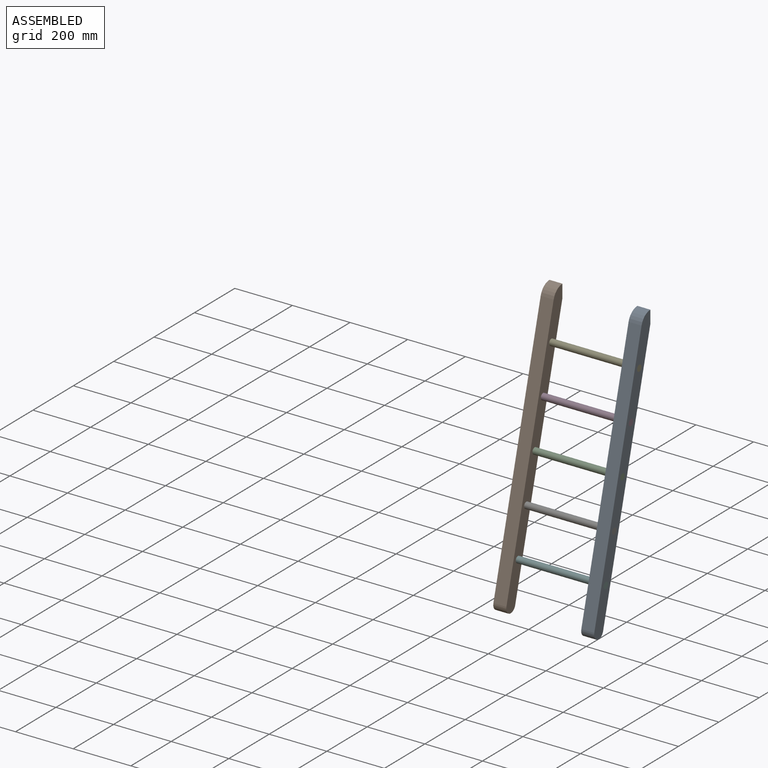
[diagram: assembled view]
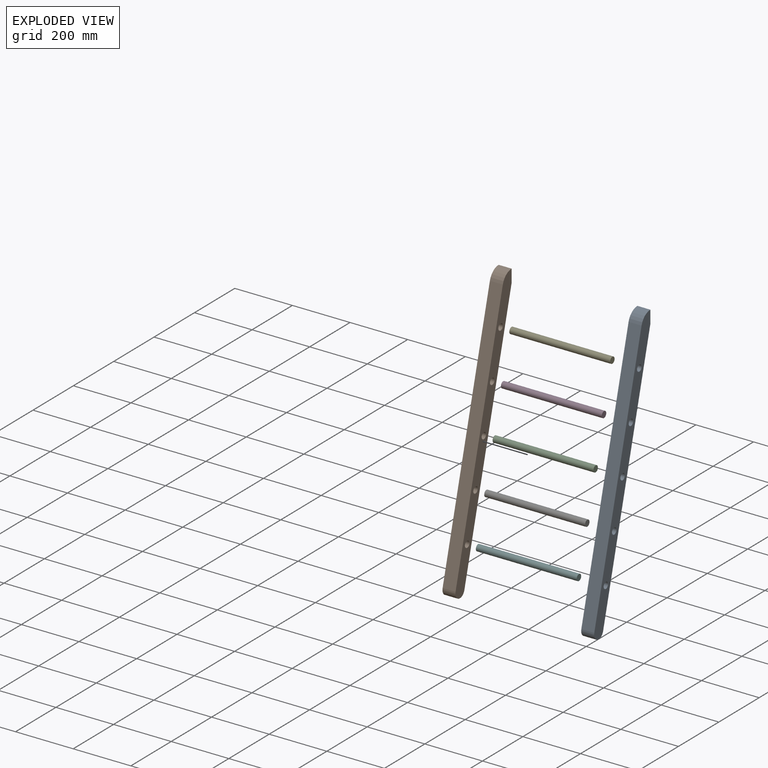
[diagram: exploded view]
GUIDED TOUR — MATED ASSEMBLY (Onshape document e4728fe7e3bab684e88aad79, AutoMate assembly e4728fe7e3bab684e88aad79_089aa83bc96c4ccf20c035b7_27880afdff6a82c044238801_default)

This assembly has 7 components, labeled P0..P6 below (a component is one placed occurrence of a part; the same part can appear more than once), held together by 13 mates. A mate is a constraint between two components; its type names the relative motion it leaves free:
  CYLINDRICAL — leaves both rotation about and translation along the listed axis free,
  PLANAR — leaves sliding in the plane through the listed point (normal = the listed direction) and rotation about that normal free.
Axis/direction vectors are unit vectors and 'through' points are millimeter coordinates, both in the assembly's world frame.

MATES
  1. CYLINDRICAL "Cylindrical 4": P3 <-> P0, axis (-1.000, 0.000, 0.000) through (45.34, -7.64, -17.47) mm
  2. CYLINDRICAL "Cylindrical 5": P2 <-> P0, axis (-1.000, 0.000, 0.000) through (45.34, -49.05, -172.02) mm
  3. CYLINDRICAL "Cylindrical 6": P5 <-> P0, axis (-1.000, 0.000, 0.000) through (45.34, -131.87, -481.11) mm
  4. PLANAR "Planar 1": P4 <-> P0, direction (1.000, 0.000, 0.000) through (220.34, 33.77, 137.08) mm
  5. PLANAR "Planar 4": P2 <-> P0, direction (1.000, 0.000, 0.000) through (220.34, -49.05, -172.02) mm
  6. CYLINDRICAL "Cylindrical 3": P4 <-> P0, axis (-1.000, 0.000, 0.000) through (45.34, 33.77, 137.08) mm
  7. PLANAR "Planar 2": P4 <-> P1, direction (-1.000, 0.000, 0.000) through (-129.66, 33.77, 137.08) mm
  8. PLANAR "Planar 6": P5 <-> P0, direction (1.000, 0.000, 0.000) through (220.34, -131.87, -481.11) mm
  9. CYLINDRICAL "Cylindrical 1": P4 <-> P1, axis (-1.000, 0.000, 0.000) through (-129.66, 33.77, 137.08) mm
  10. PLANAR "Planar 3": P3 <-> P0, direction (1.000, 0.000, 0.000) through (220.34, -7.64, -17.47) mm
  11. PLANAR "Planar 5": P6 <-> P0, direction (1.000, 0.000, 0.000) through (220.34, -90.46, -326.57) mm
  12. PLANAR "Planar 7": P6 <-> P0, direction (1.000, 0.000, 0.000) through (220.34, -90.46, -326.57) mm
  13. CYLINDRICAL "Cylindrical 7": P6 <-> P0, axis (-1.000, 0.000, 0.000) through (45.34, -90.46, -326.57) mm

ASSEMBLY ORDER
  1. P5 — the base component [order verified]
  2. P4 [order verified]
  3. P1 [order verified]
  4. P2 [order verified]
  5. P0 [order verified]
  6. P6 [order verified]
  7. P3 [order verified]
Order-tag legend:
  [order verified] — this step's position reverses a verified removal order: the component was checked to insert without passing through the ones already placed.

Of the 7 components, 7 carry the full construction recipe — the FeatureScript program that regenerates the part's solid from scratch; the rest are supplied as boundary geometry only.
Each toured component is shown spotlighted twice — in the assembled view, then in the exploded view, where a leader line traces a displaced component back to its assembled socket (saturated green if recipe-attached, orange if geometry-only; every other component desaturated gray) — followed by its recipe or geometry summary and the mates that hold it.
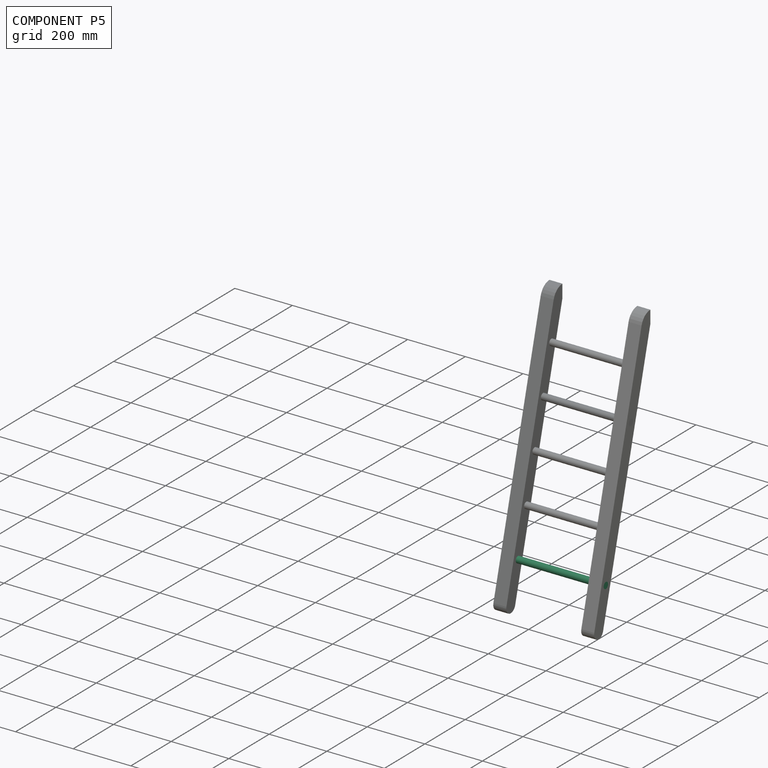
[diagram: component P5 — assembled]
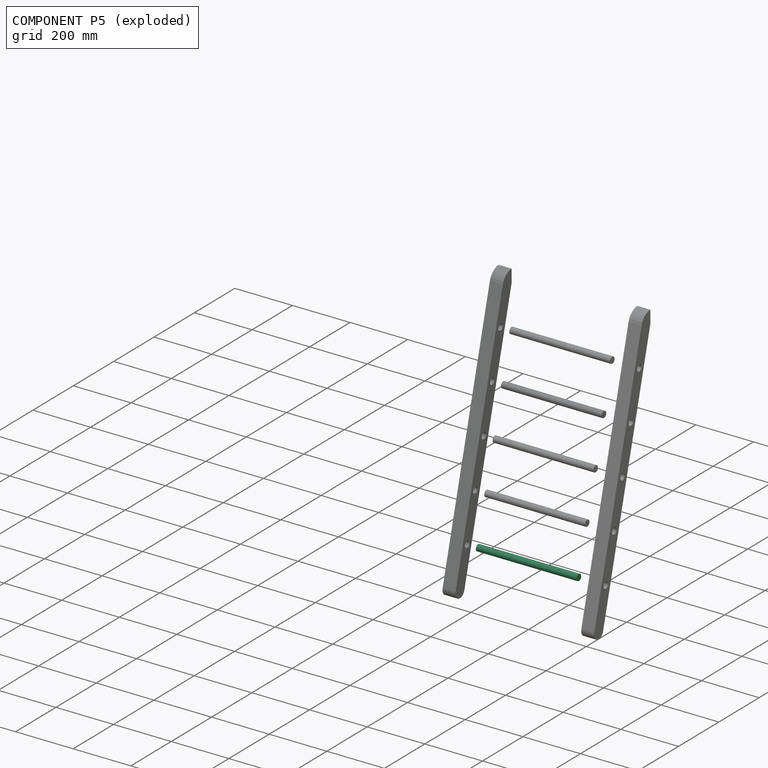
[diagram: component P5 — exploded]
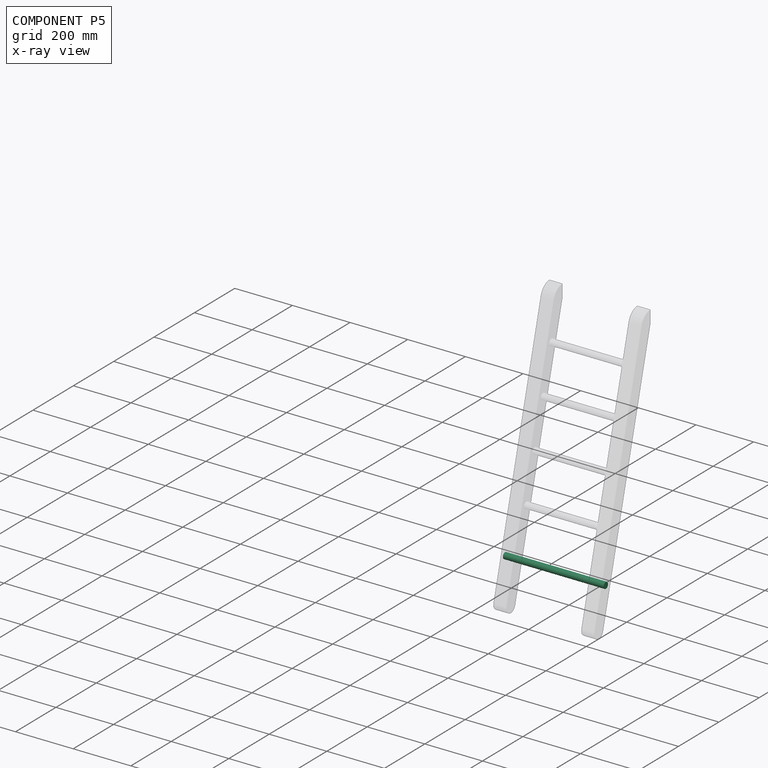
[diagram: component P5 — x-ray view]
COMPONENT P5 — same part as P2 (CADFS 00932119); its construction recipe is shown at P2.
Held by: CYLINDRICAL mate "Cylindrical 6" to P0; PLANAR mate "Planar 6" to P0.
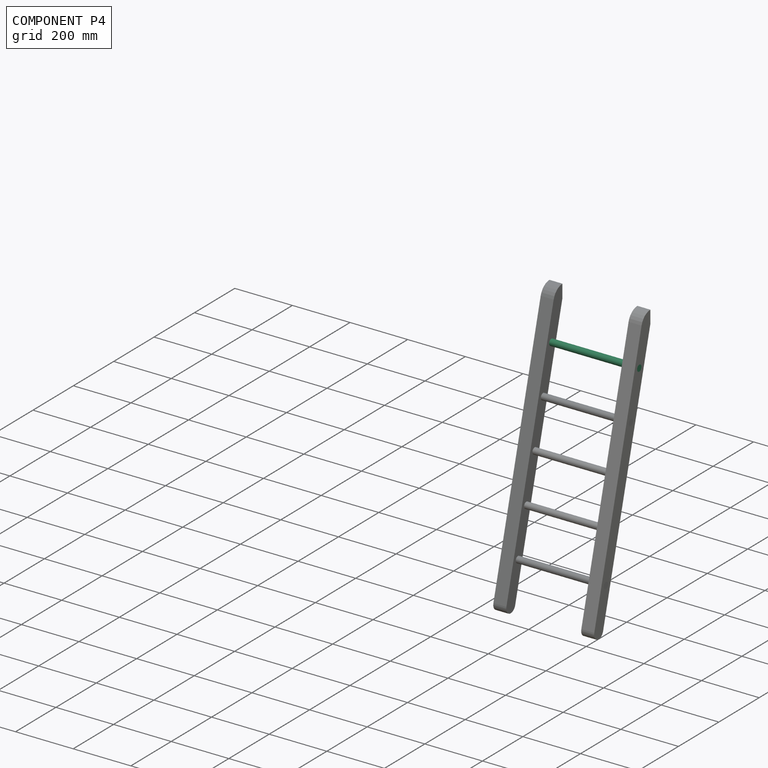
[diagram: component P4 — assembled]
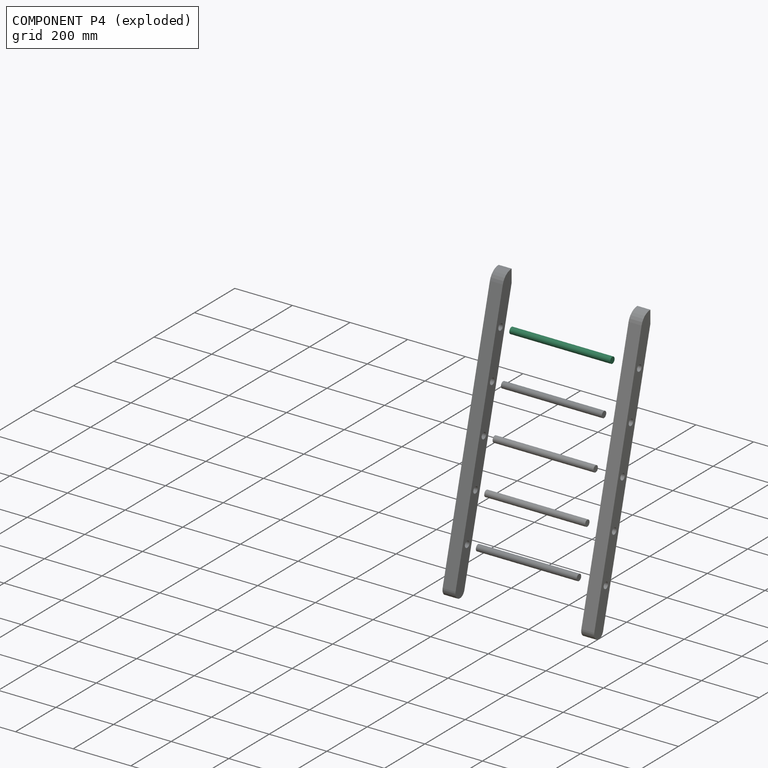
[diagram: component P4 — exploded]
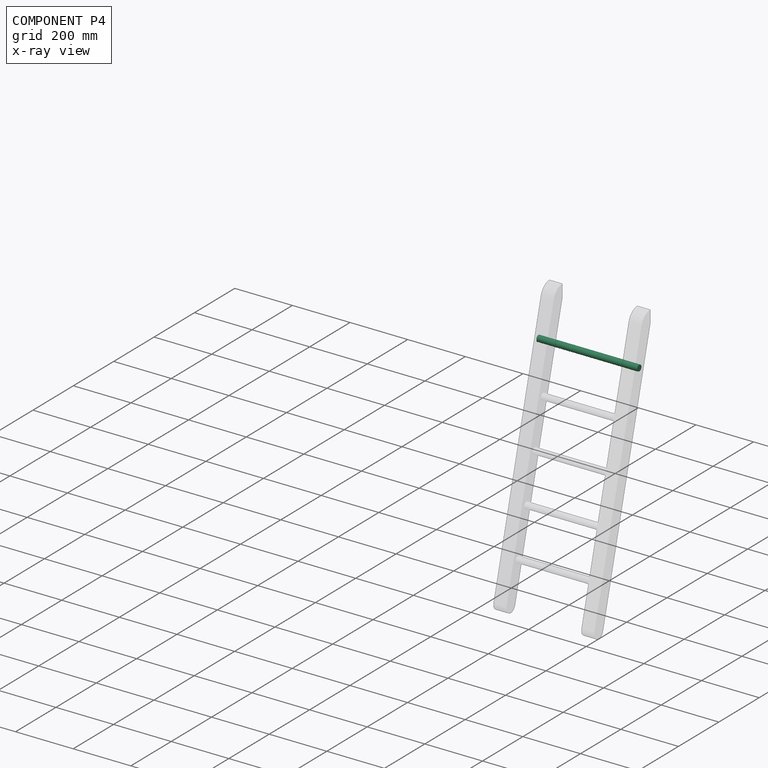
[diagram: component P4 — x-ray view]
COMPONENT P4 — same part as P2 (CADFS 00932119); its construction recipe is shown at P2.
Held by: PLANAR mate "Planar 1" to P0; CYLINDRICAL mate "Cylindrical 3" to P0; PLANAR mate "Planar 2" to P1; CYLINDRICAL mate "Cylindrical 1" to P1.
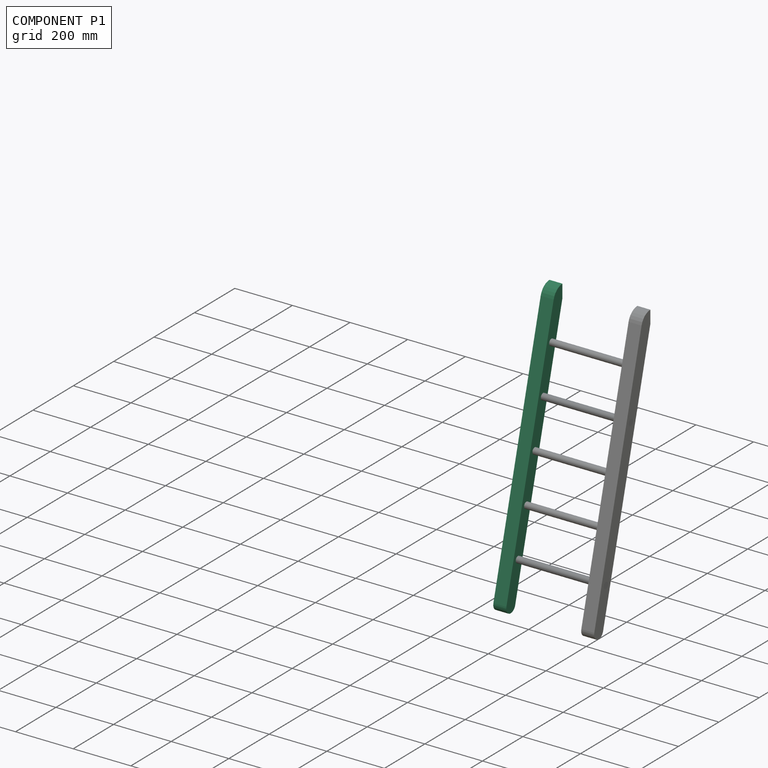
[diagram: component P1 — assembled]
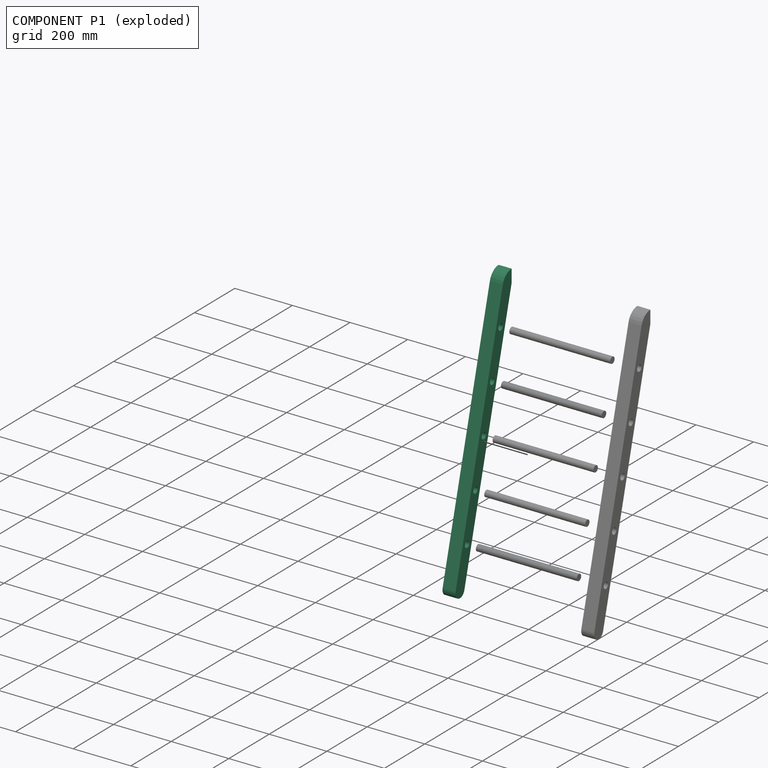
[diagram: component P1 — exploded]
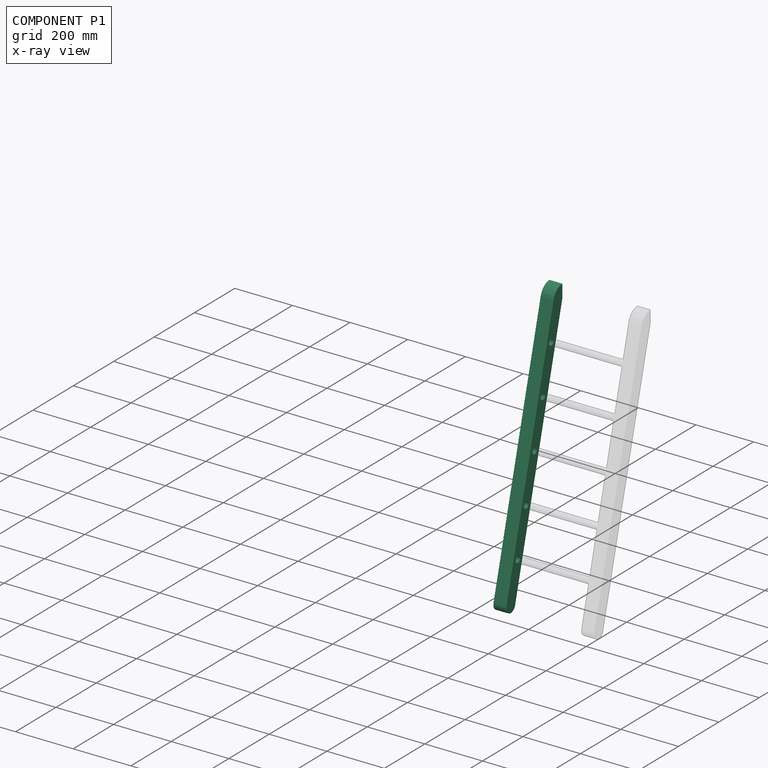
[diagram: component P1 — x-ray view]
COMPONENT P1 — same part as P0 (CADFS 00932118); its construction recipe is shown at P0.
Held by: PLANAR mate "Planar 2" to P4; CYLINDRICAL mate "Cylindrical 1" to P4.
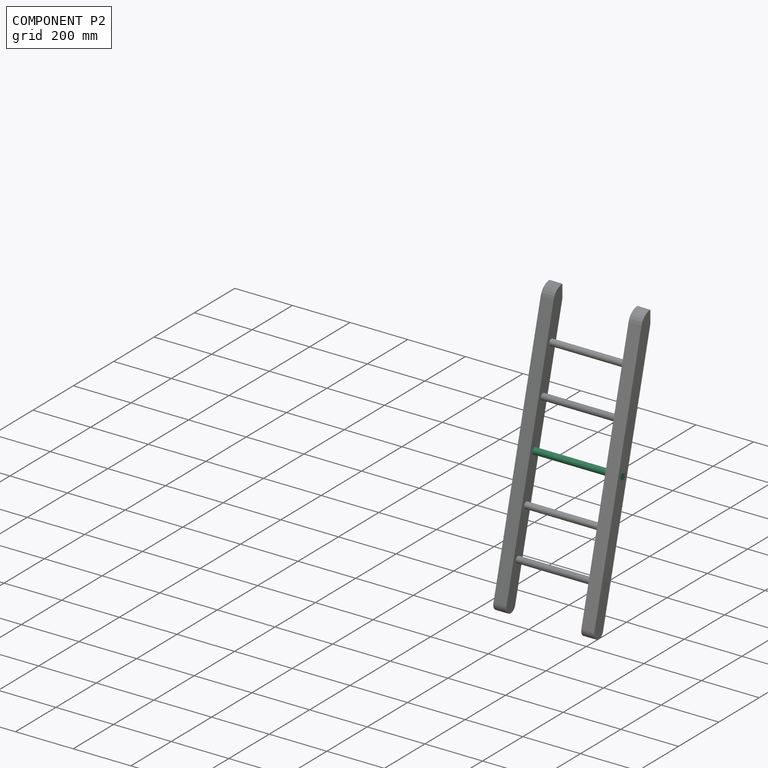
[diagram: component P2 — assembled]
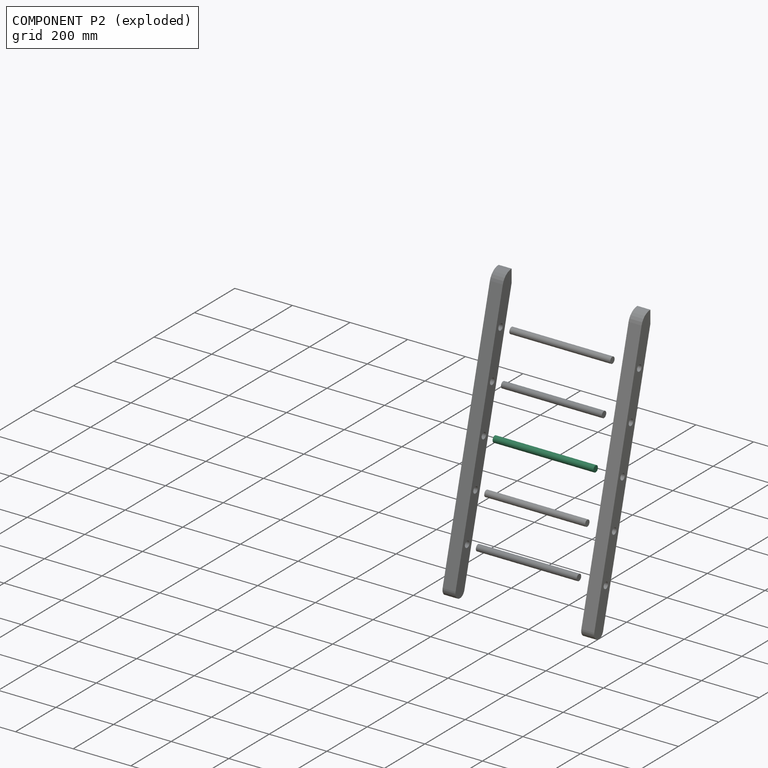
[diagram: component P2 — exploded]
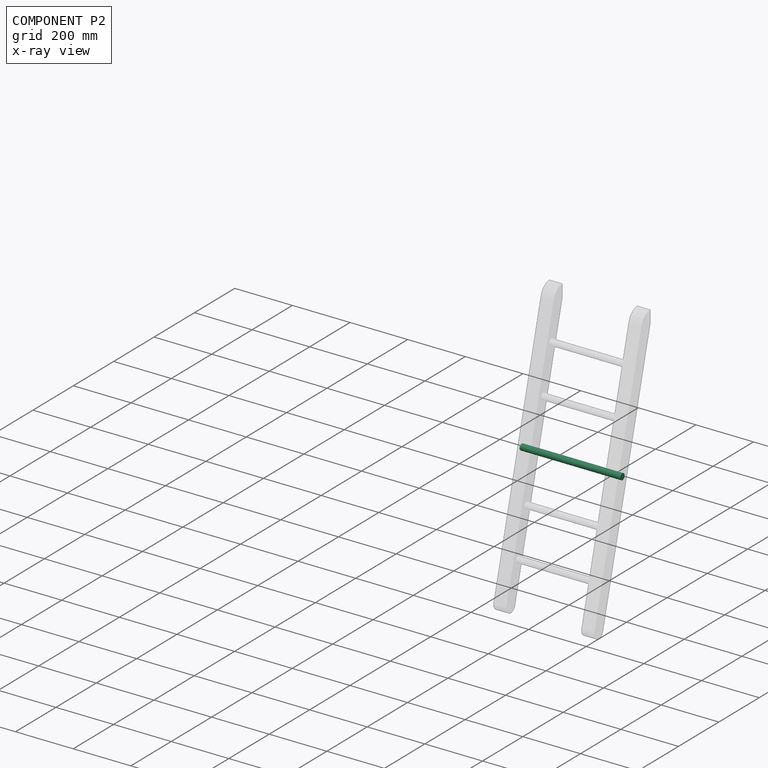
[diagram: component P2 — x-ray view]
COMPONENT P2 — recipe-attached (CADFS 00932119, mesh-verified: the recipe's output STEP matches this component's geometry to below the mesh-comparison resolution (tessellation chordal tolerance ~0.527 mm)).
Held by: CYLINDRICAL mate "Cylindrical 5" to P0; PLANAR mate "Planar 4" to P0.
Construction recipe (FeatureScript — the CAD program that rebuilds this solid; sketch coordinates are in the units given by the * unit suffixes, e.g. mm):

FeatureScript 1540;
import(path : "onshape/std/geometry.fs", version : "1540.0");
import(path : "onshape/std/common.fs", version : "1540.0");
const mm = millimeter;
const VERTEX = EntityType.VERTEX;
const EDGE = EntityType.EDGE;
const FACE = EntityType.FACE;
const BODY = EntityType.BODY;
function v(x, y){return vector(x, y);}
function OD(order){return orderDisambiguation(order);}
function OSD(set){return originalSetDisambiguation(set);}
function TD(topology){return topologyDisambiguation(topology);}
function TDD(query){return trueDependencyDisambiguation(query);}
function sQuery(a, b, c) {return sketchEntityQuery(a, b, c);}

annotation { "Feature Type Name" : "Feature", "Feature Type Description" : "" }
export const myFeature = defineFeature(function(context is Context, id is Id, definition is map)
    precondition{}
    {
        {
            var Q0;
            Q0=qCreatedBy(makeId("Right.planeOp"),FACE);
            var sketch = newSketch(context, id + "F0", { "sketchPlane" : qUnion([Q0])});
            skCircle(sketch, "E0", {"center": v(0, 0) * mm, "radius": 11 * mm});
            skSolve(sketch);
        }
        {
            var Q0;
            Q0=makeQuery(id+"F0.imprint","IMPRINT",FACE,{"disambiguationData":[TD([[makeQuery(id+"F0.imprint","IMPRINT",EDGE,{"derivedFrom":sQuery(id+"F0.wireOp",EDGE,"E0")}),1.0]])]});
            extrude(context, id + "F1", {"entities" : qUnion([Q0]), "depth" : 350 * mm, "offsetDistance" : 25 * mm});
        }
    });
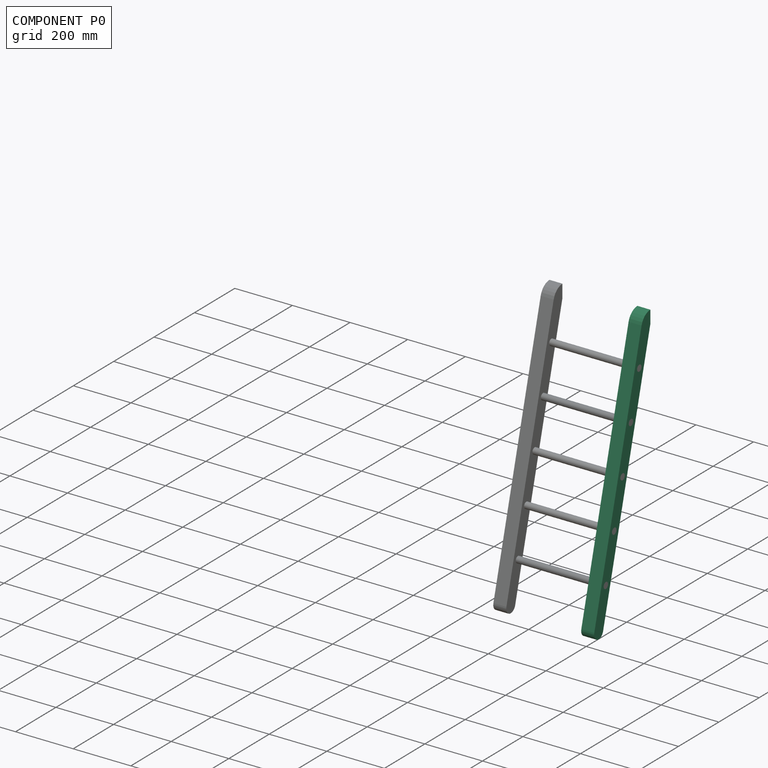
[diagram: component P0 — assembled]
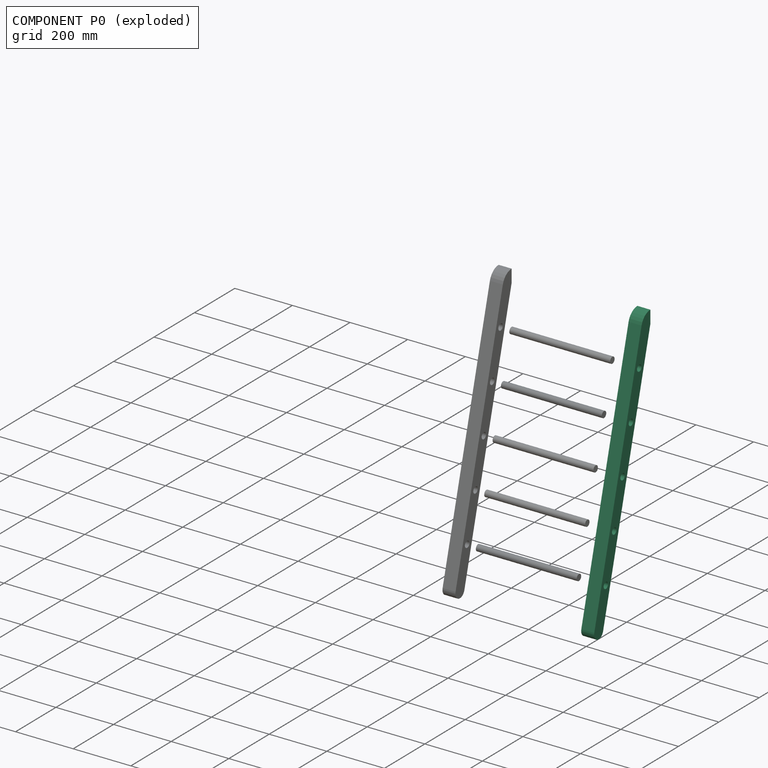
[diagram: component P0 — exploded]
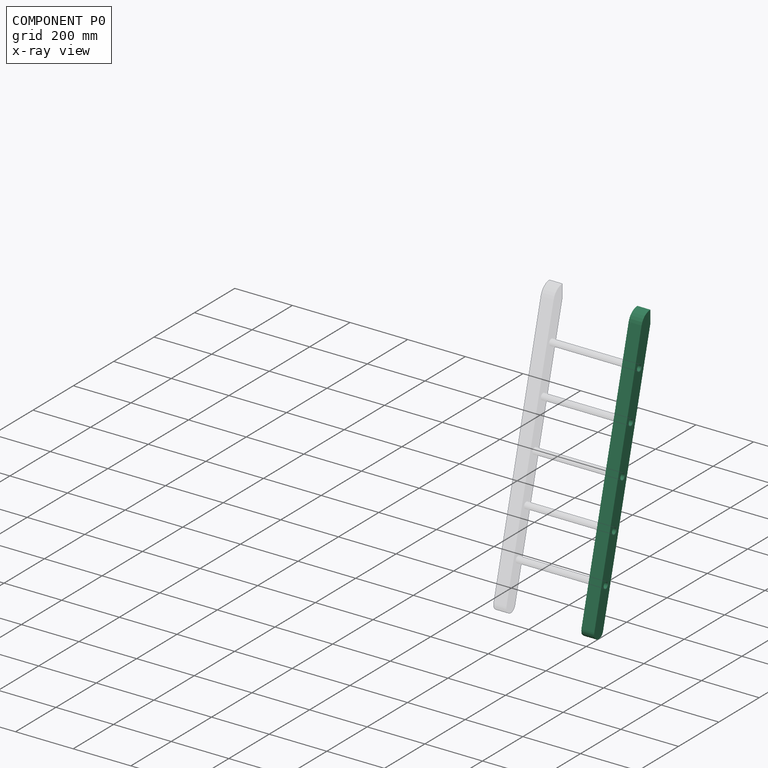
[diagram: component P0 — x-ray view]
COMPONENT P0 — recipe-attached (CADFS 00932118, mesh-verified: the recipe's output STEP matches this component's geometry to below the mesh-comparison resolution (tessellation chordal tolerance ~1.47 mm)).
Held by: CYLINDRICAL mate "Cylindrical 4" to P3; CYLINDRICAL mate "Cylindrical 5" to P2; CYLINDRICAL mate "Cylindrical 6" to P5; PLANAR mate "Planar 1" to P4; PLANAR mate "Planar 4" to P2; CYLINDRICAL mate "Cylindrical 3" to P4; PLANAR mate "Planar 6" to P5; PLANAR mate "Planar 3" to P3; PLANAR mate "Planar 5" to P6; PLANAR mate "Planar 7" to P6; CYLINDRICAL mate "Cylindrical 7" to P6.
Construction recipe (FeatureScript — the CAD program that rebuilds this solid; sketch coordinates are in the units given by the * unit suffixes, e.g. mm):

FeatureScript 1540;
import(path : "onshape/std/geometry.fs", version : "1540.0");
import(path : "onshape/std/common.fs", version : "1540.0");
const mm = millimeter;
const VERTEX = EntityType.VERTEX;
const EDGE = EntityType.EDGE;
const FACE = EntityType.FACE;
const BODY = EntityType.BODY;
function v(x, y){return vector(x, y);}
function OD(order){return orderDisambiguation(order);}
function OSD(set){return originalSetDisambiguation(set);}
function TD(topology){return topologyDisambiguation(topology);}
function TDD(query){return trueDependencyDisambiguation(query);}
function sQuery(a, b, c) {return sketchEntityQuery(a, b, c);}

annotation { "Feature Type Name" : "Feature", "Feature Type Description" : "" }
export const myFeature = defineFeature(function(context is Context, id is Id, definition is map)
    precondition{}
    {
        {
            var Q0;
            Q0=qCreatedBy(makeId("Right.planeOp"),FACE);
            var sketch = newSketch(context, id + "F0", { "sketchPlane" : qUnion([Q0])});
            skLineSegment(sketch, "E0", {"start": v(-90.87, 1417.76) * mm, "end": v(-325.14, 543.44) * mm});
            skLineSegment(sketch, "E1", {"start": v(-134.34, 1429.41) * mm, "end": v(-368.6, 555.09) * mm});
            skPoint(sketch, "E2.orphan", {"position": v(-329.61, 526.76) * mm});
            skLineSegment(sketch, "E3", {"start": v(-90.87, 1462.76) * mm, "end": v(-90.87, 526.76) * mm, "construction": true});
            skLineSegment(sketch, "E4", {"start": v(-90.87, 526.76) * mm, "end": v(-329.61, 526.76) * mm, "construction": true});
            skPoint(sketch, "E5.first.point", {"position": v(-244.47, 1018.38) * mm});
            skPoint(sketch, "E5.second.point", {"position": v(-202.5, 1001.17) * mm});
            skArc(sketch, "E6.filletArc", {"start": v(-90.87, 1462.76) * mm, "mid": v(-118.26, 1453.46) * mm, "end": v(-134.34, 1429.41) * mm});
            skLineSegment(sketch, "E7", {"start": v(-90.87, 1462.76) * mm, "end": v(-90.87, 1462.76) * mm});
            skLineSegment(sketch, "E8", {"start": v(-90.87, 1417.76) * mm, "end": v(-90.87, 1462.76) * mm});
            skLineSegment(sketch, "E9", {"start": v(-352.7, 527.53) * mm, "end": v(-352.7, 527.53) * mm});
            skPoint(sketch, "E10.visualSharp", {"position": v(-374.43, 533.35) * mm});
            skArc(sketch, "E10.filletArc", {"start": v(-368.6, 555.09) * mm, "mid": v(-366.36, 538.01) * mm, "end": v(-352.7, 527.53) * mm});
            skPoint(sketch, "E11.visualSharp", {"position": v(-330.97, 521.7) * mm});
            skArc(sketch, "E11.filletArc", {"start": v(-352.7, 527.53) * mm, "mid": v(-335.63, 529.78) * mm, "end": v(-325.14, 543.44) * mm});
            skSolve(sketch);
        }
        {
            var Q0;
            Q0=makeQuery(id+"F0.imprint","IMPRINT",FACE,{"disambiguationData":[TD([[makeQuery(id+"F0.imprint","IMPRINT",EDGE,{"derivedFrom":sQuery(id+"F0.wireOp",EDGE,"E0")}),-1.0]])]});
            extrude(context, id + "F1", {"entities" : qUnion([Q0]), "depth" : 45 * mm, "offsetDistance" : 25 * mm});
        }
        {
            var Q0;
            Q0=makeQuery(id+"F1.opExtrude","CAP_FACE",FACE,{"disambiguationData":[OSD([sQuery(id+"F0.wireOp",EDGE,"E0"),sQuery(id+"F0.wireOp",EDGE,"E1"),sQuery(id+"F0.wireOp",EDGE,"E6.filletArc"),sQuery(id+"F0.wireOp",EDGE,"E8"),sQuery(id+"F0.wireOp",EDGE,"E10.filletArc"),sQuery(id+"F0.wireOp",EDGE,"E11.filletArc")])],"isStart":false});
            var sketch = newSketch(context, id + "F2", { "sketchPlane" : qUnion([Q0])});
            skArc(sketch, "E12.0", {"start": v(-90.87, 1462.76) * mm, "mid": v(-118.26, 1453.46) * mm, "end": v(-134.34, 1429.41) * mm});
            skLineSegment(sketch, "E13.0", {"start": v(-134.34, 1429.41) * mm, "end": v(-368.6, 555.09) * mm});
            skLineSegment(sketch, "E14.0", {"start": v(-90.87, 1417.76) * mm, "end": v(-325.14, 543.44) * mm});
            skLineSegment(sketch, "E15.0", {"start": v(-90.87, 1417.76) * mm, "end": v(-90.87, 1462.76) * mm});
            skArc(sketch, "E16.0", {"start": v(-368.6, 555.09) * mm, "mid": v(-352.7, 527.53) * mm, "end": v(-325.14, 543.44) * mm});
            skLineSegment(sketch, "E17.0", {"start": v(-112.6, 1423.59) * mm, "end": v(-346.88, 549.26) * mm, "construction": true});
            skPoint(sketch, "E18", {"position": v(-311.29, 682.08) * mm});
            skPoint(sketch, "E19", {"position": v(-269.88, 836.63) * mm});
            skPoint(sketch, "E20", {"position": v(-228.47, 991.18) * mm});
            skPoint(sketch, "E21", {"position": v(-187.06, 1145.72) * mm});
            skPoint(sketch, "E22", {"position": v(-145.64, 1300.27) * mm});
            skSolve(sketch);
        }
        {
            var Q0;
            Q0=sQuery(id+"F2.wireOp",VERTEX,"E22");
            var Q1;
            Q1=sQuery(id+"F2.wireOp",VERTEX,"E21");
            var Q2;
            Q2=sQuery(id+"F2.wireOp",VERTEX,"E20");
            var Q3;
            Q3=sQuery(id+"F2.wireOp",VERTEX,"E19");
            var Q4;
            Q4=sQuery(id+"F2.wireOp",VERTEX,"E18");
            var Q5;
            Q5=makeQuery(id+"F1.opExtrude","SWEPT_BODY",BODY,{"disambiguationData":[OSD([sQuery(id+"F0.wireOp",EDGE,"E0"),sQuery(id+"F0.wireOp",EDGE,"E1"),sQuery(id+"F0.wireOp",EDGE,"E6.filletArc"),sQuery(id+"F0.wireOp",EDGE,"E8"),sQuery(id+"F0.wireOp",EDGE,"E10.filletArc"),sQuery(id+"F0.wireOp",EDGE,"E11.filletArc")])]});
            hole(context, id + "F3", {"style" : HoleStyle.SIMPLE, "endStyle" : HoleEndStyle.THROUGH, "holeDiameter" : 22 * mm, "majorDiameter" : 5 * mm, "isTappedThrough" : true, "tappedDepth" : 12 * mm, "tapClearance" : 3, "startFromSketch" : true, "locations" : qUnion([Q0, Q1, Q2, Q3, Q4]), "scope" : qUnion([Q5])});
        }
    });
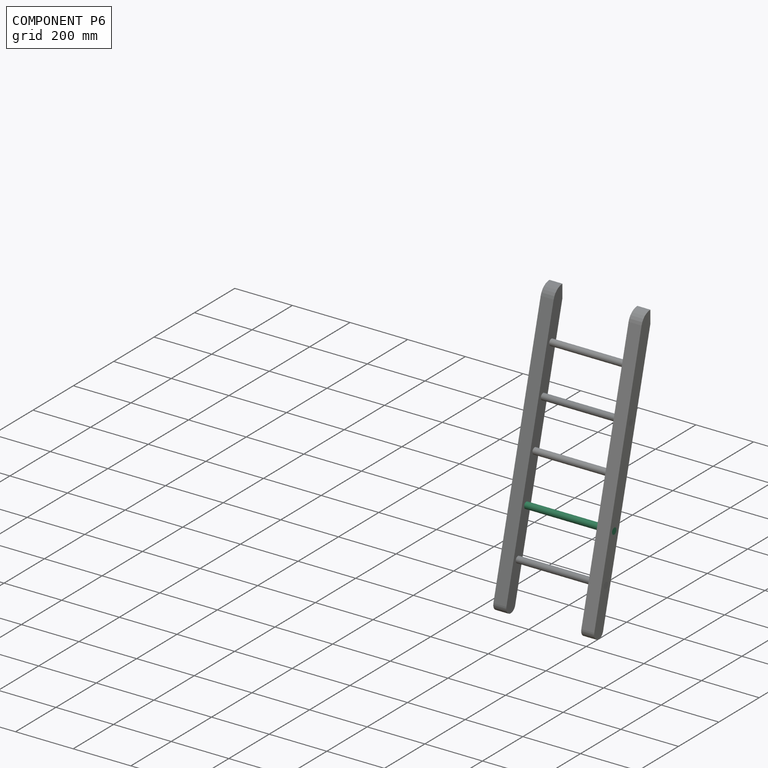
[diagram: component P6 — assembled]
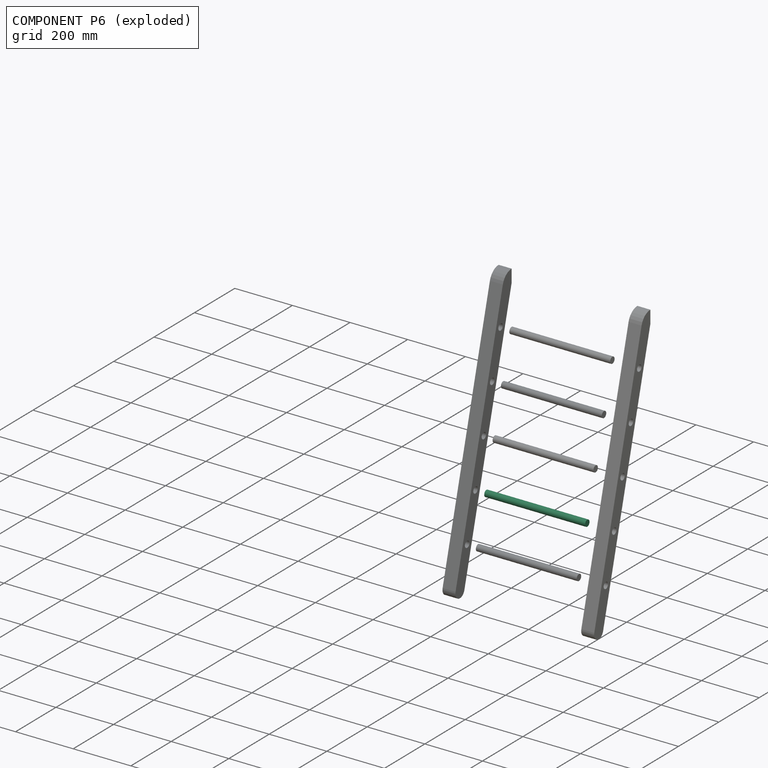
[diagram: component P6 — exploded]
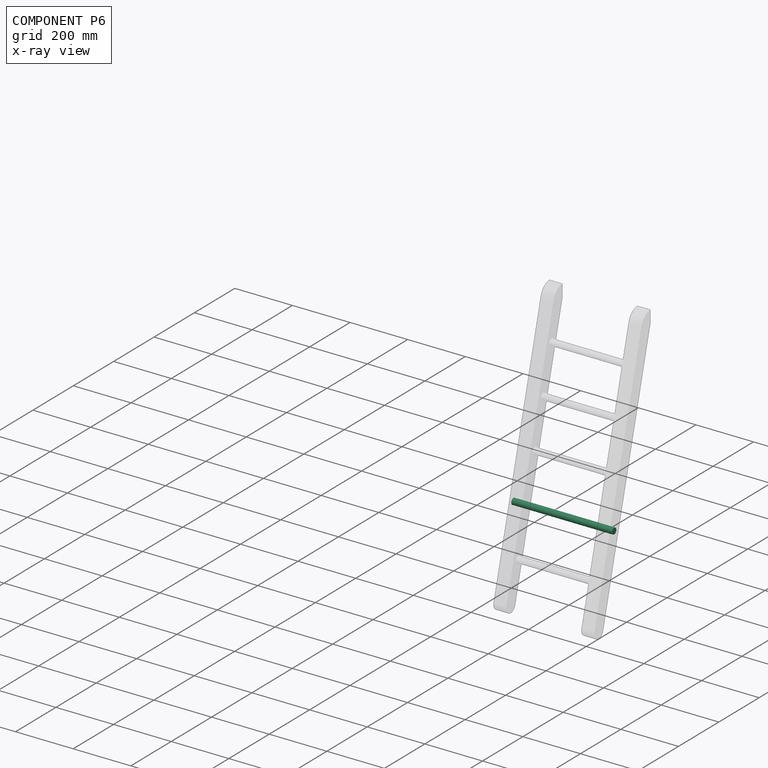
[diagram: component P6 — x-ray view]
COMPONENT P6 — same part as P2 (CADFS 00932119); its construction recipe is shown at P2.
Held by: PLANAR mate "Planar 5" to P0; PLANAR mate "Planar 7" to P0; CYLINDRICAL mate "Cylindrical 7" to P0.
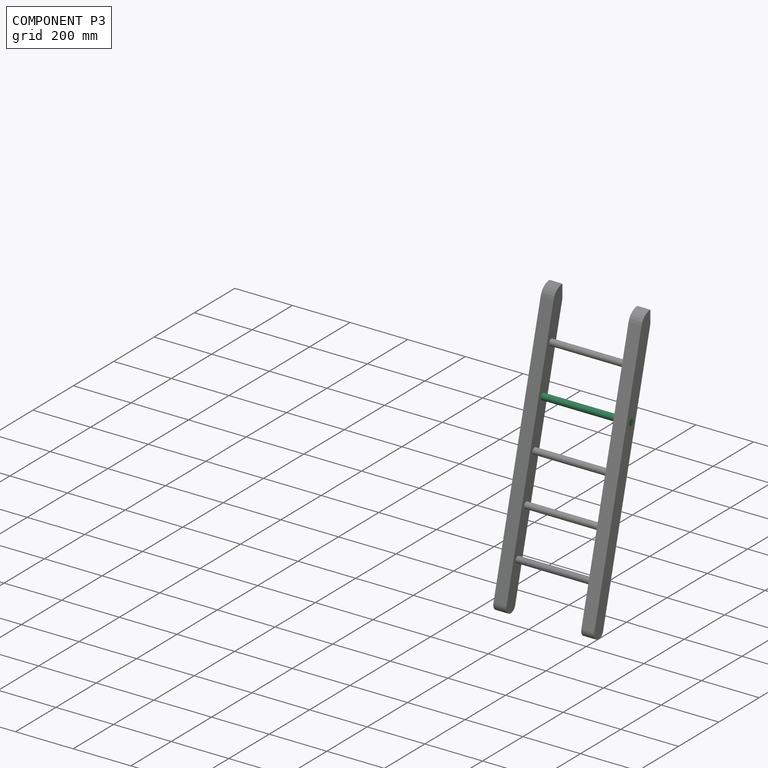
[diagram: component P3 — assembled]
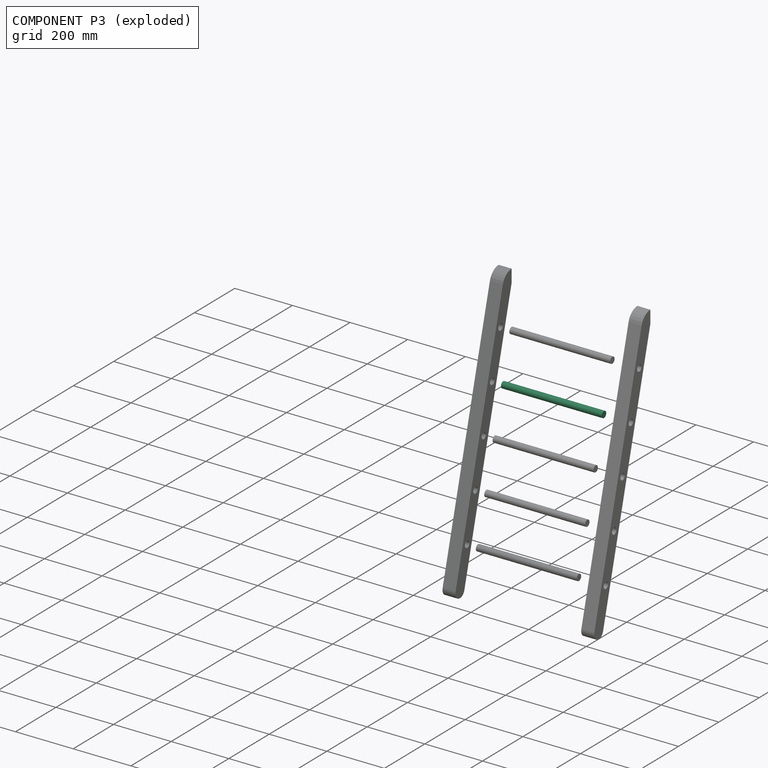
[diagram: component P3 — exploded]
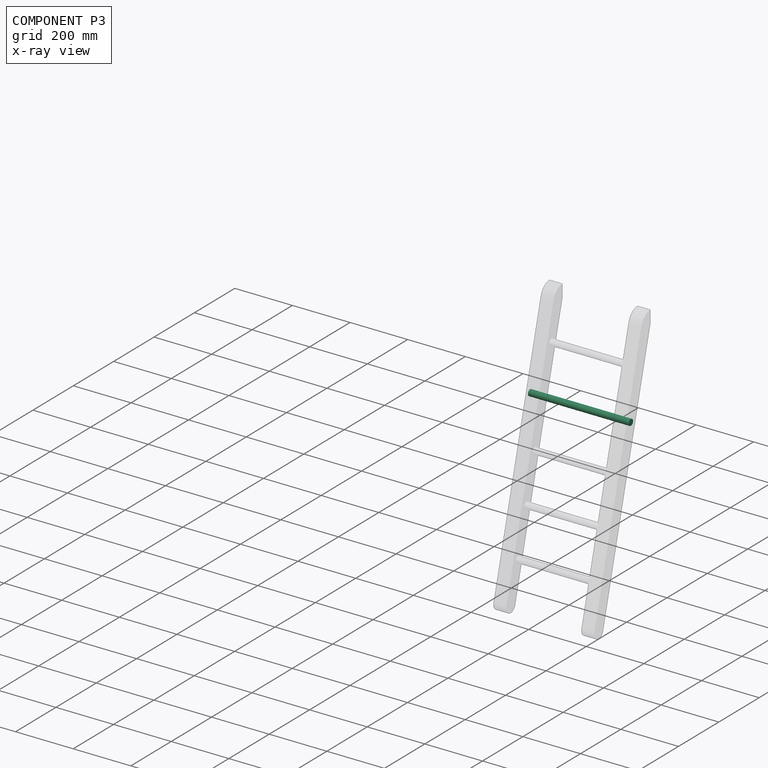
[diagram: component P3 — x-ray view]
COMPONENT P3 — same part as P2 (CADFS 00932119); its construction recipe is shown at P2.
Held by: CYLINDRICAL mate "Cylindrical 4" to P0; PLANAR mate "Planar 3" to P0.
PROVENANCE & LICENSES
Assembly (occurrences, transforms, mates, per-part STEP geometry): AutoMate dataset, Zenodo record 7776208, CC0.
Construction recipes: CADFS (HuggingFace VladPyatov/CADFS, CC-BY-4.0, layered over the ABC dataset), FeatureScript reconstruction programs keyed by ABC model id.
Join: ABC meta listings map ABC model id -> Onshape documentId; within a shared document, parts are matched by geometric signature (bounding-box dims + volume at 0.1% relative tolerance, exact B-rep face/solid counts).
Verification: 7 of this assembly's 7 components carry a recipe attachment, and every attachment is mesh-verified: the CADFS STEP and the AutoMate member STEP were compared as meshes in their shared local frame (symmetric sampled-point-to-mesh distance); worst across the 7 attachments: below the mesh-comparison resolution (tessellation chordal tolerance ~1.47 mm) on a 977 mm part.
Renders: orthographic iso camera (az 35 / el 25); the floor grid conveys scale (grid pitch printed in each image; no ruler). In the exploded view each component is displaced by its stored offset vector: the offsets alone carry the explosion direction (mate normal/axis signs are not orientation cues and do not encode it), and separation distances are assigned per mate-chain, not proportionally to assembly-order depth.
